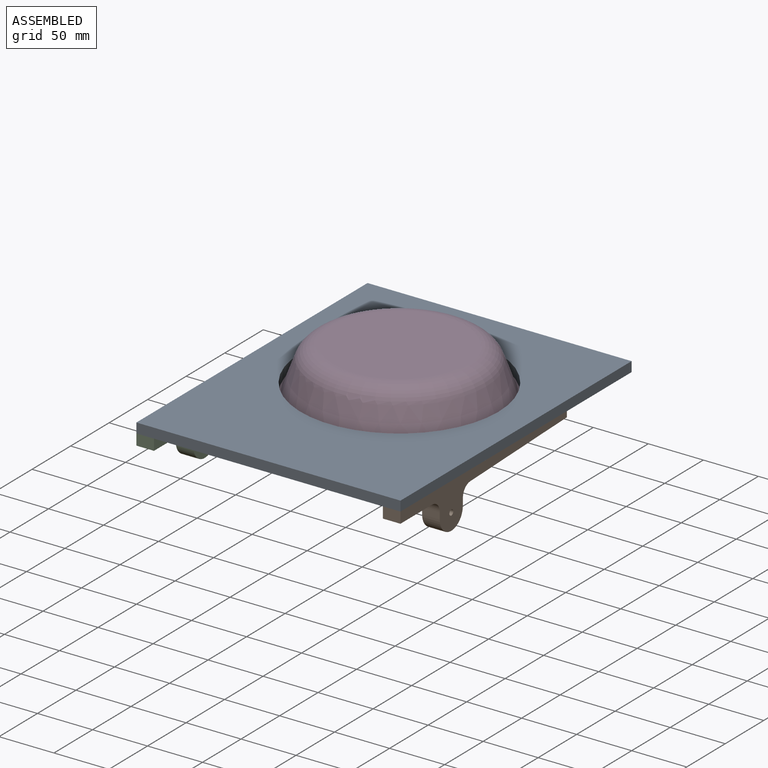
[diagram: assembled view]
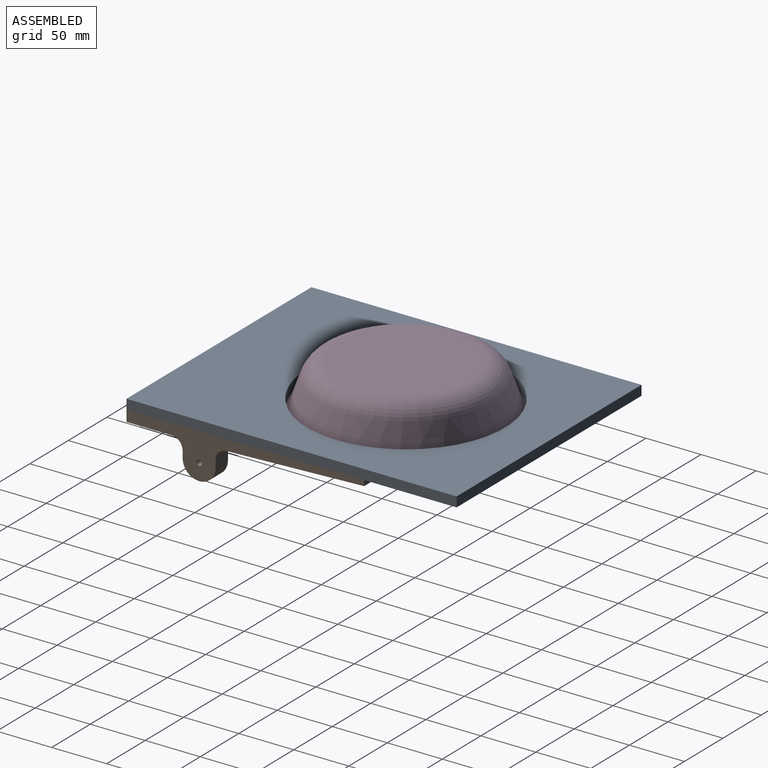
[diagram: assembled view, second angle]
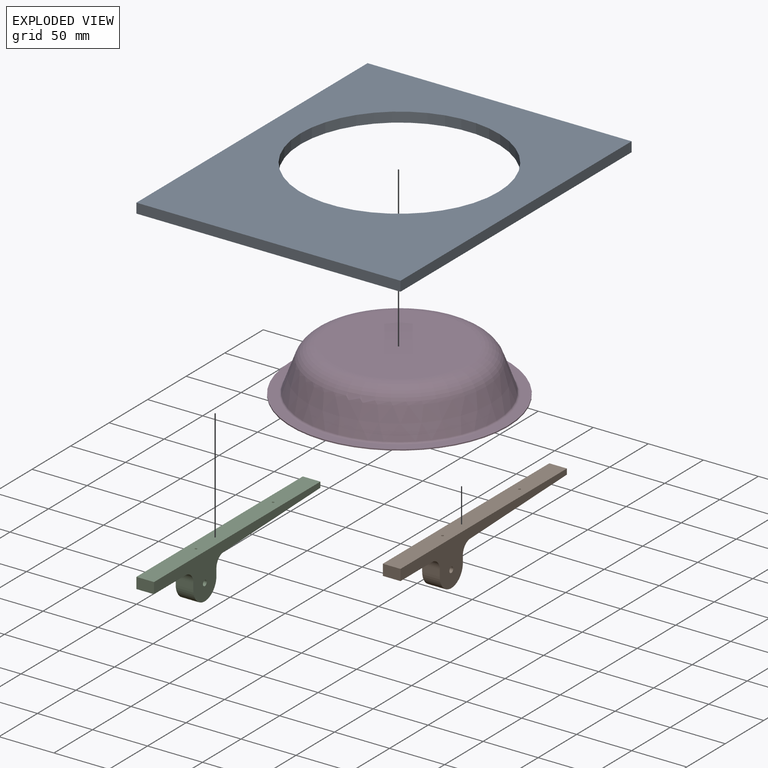
[diagram: exploded view]
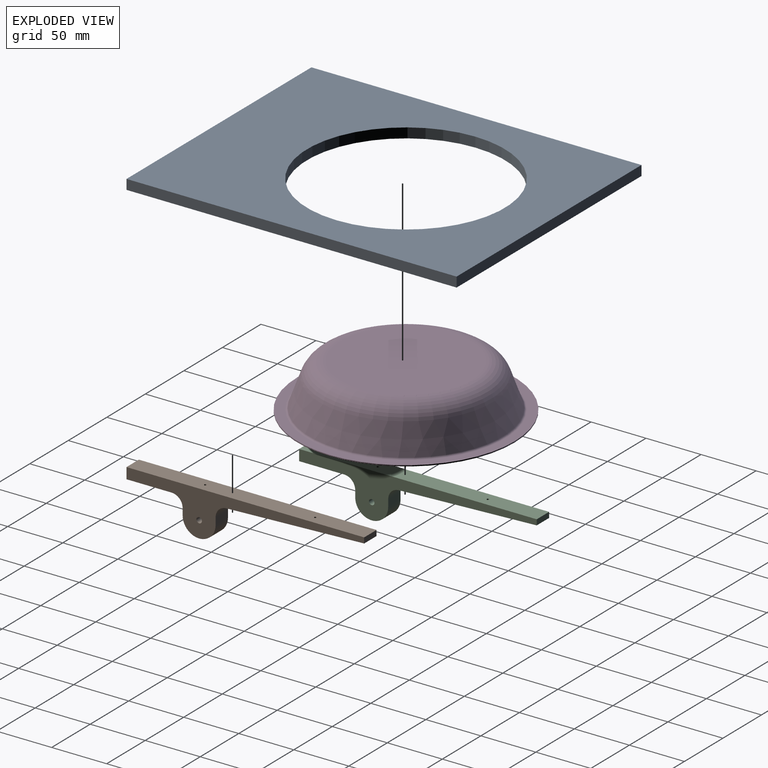
[diagram: exploded view, second angle]
ASSEMBLY  parts=4 mates=5
PART A: 7 faces, bbox 240x300x9 mm
  f0: plane 300x9mm, normal (1,0,0), area 2700mm2, adj f1,f4,f5,f6
  f1: plane 240x9mm, normal (0,1,0), area 2160mm2, adj f0,f2,f5,f6
  f2: plane 300x9mm, normal (-1,0,0), area 2700mm2, adj f1,f4,f5,f6
  f3: cylinder r=90mm len=180mm, axis (0,0,-1), area 5089.4mm2, adj f5,f6
  f4: plane 240x9mm, normal (0,-1,0), area 2160mm2, adj f0,f2,f5,f6
  f5: plane 300x240mm, normal (0,0,1), area 46553.1mm2, adj f0,f1,f2,f3,f4
  f6: plane 300x240mm, normal (0,0,-1), area 46553.1mm2, adj f0,f1,f2,f3,f4
PART B: 15 faces, bbox 16x41x216 mm
  f0: cylinder r=2.5mm len=16mm, axis (-1,0,0), area 248.1mm2, adj f11,f12,f13
  f1: plane 16x6.36mm, normal (0,0,1), area 101.8mm2, adj f2,f10,f11,f12
  f2: cylinder r=10mm len=16mm, axis (-1,0,0), area 245.4mm2, adj f1,f3,f11,f12
  f3: plane 125.37x16mm, normal (0,1,0.04), area 2004.2mm2, adj f2,f4,f11,f12,f14
  f4: plane 16x5mm, normal (0,0,1), area 80mm2, adj f3,f5,f11,f12
  f5: plane 216x16mm, normal (0,-1,0), area 3449.7mm2, adj f4,f6,f11,f12,f13,f14
  f6: plane 16x10mm, normal (0,0,-1), area 160mm2, adj f5,f7,f11,f12
  f7: plane 41x16mm, normal (0,1,0), area 656mm2, adj f6,f8,f11,f12
  f8: cylinder r=10mm len=16mm, axis (-1,0,0), area 251.3mm2, adj f7,f9,f11,f12
  f9: plane 16x6mm, normal (0,0,-1), area 96mm2, adj f8,f10,f11,f12
  f10: cylinder r=15mm len=30mm, axis (-1,0,0), area 754mm2, adj f1,f9,f11,f12
  f11: plane 216x41mm, normal (1,0,0), area 2677.4mm2, adj f0,f1,f2,f3,f4,f5,f6,f7
  f12: plane 216x41mm, normal (-1,0,0), area 2677.4mm2, adj f0,f1,f2,f3,f4,f5,f6,f7
  f13: cylinder r=1mm len=23.71mm, axis (0,1,0), area 148.3mm2, adj f0,f5
  f14: cylinder r=1mm len=6.89mm, axis (0,1,0), area 43.1mm2, adj f3,f5
PART C: same geometry as B
PART D: 11 faces, bbox 199.4x199.4x41 mm
  f0: cylinder r=98.6mm len=197.2mm, axis (0,0,1), area 619.5mm2, adj f2,f7
  f1: torus R=90mm, axis (0,0,1), area 1365.2mm2, adj f2,f3
  f2: plane 197.2x197.2mm, normal (0,0,1), area 5095.3mm2, adj f0,f1
  f3: cone r=78.83mm half-angle=20deg, axis (0,0,-1), area 14246.5mm2, adj f1,f4
  f4: torus R=60.04mm, axis (0,0,1), area 10870.9mm2, adj f3,f5
  f5: plane 120.07x120.07mm, normal (0,0,1), area 11323.5mm2, adj f4
  f6: torus R=90mm, axis (0,0,1), area 2035.4mm2, adj f7,f8
  f7: plane 197.2x197.2mm, normal (0,0,-1), area 5095.3mm2, adj f0,f6
  f8: cone r=77.89mm half-angle=20deg, axis (0,0,-1), area 14086.2mm2, adj f6,f9
  f9: torus R=60.04mm, axis (0,0,1), area 10248.8mm2, adj f8,f10
  f10: plane 120.07x120.07mm, normal (0,0,-1), area 11323.5mm2, adj f9
PLACE A t=(0,7,0)mm
PLACE B rot(axis=(-1,0,0),90deg) t=(112,-77,-26)mm
PLACE C rot(axis=(-1,0,0),90deg) t=(-112,-77,-26)mm
PLACE D t=(0,27,0)mm
MATE fastened D.f0 <-> A.f3  axis (0,0,1) through (0,27,0)mm
MATE planar C.f5 <-> A.f6  axis (0,0,1) through (-120,-143,0)mm
MATE planar B.f5 <-> A.f6  axis (0,0,1) through (120,-143,0)mm
MATE planar A.f4 <-> C.f6  axis (0,-1,0) through (-120,-143,0)mm
MATE planar A.f4 <-> B.f6  axis (0,-1,0) through (120,-143,0)mm
